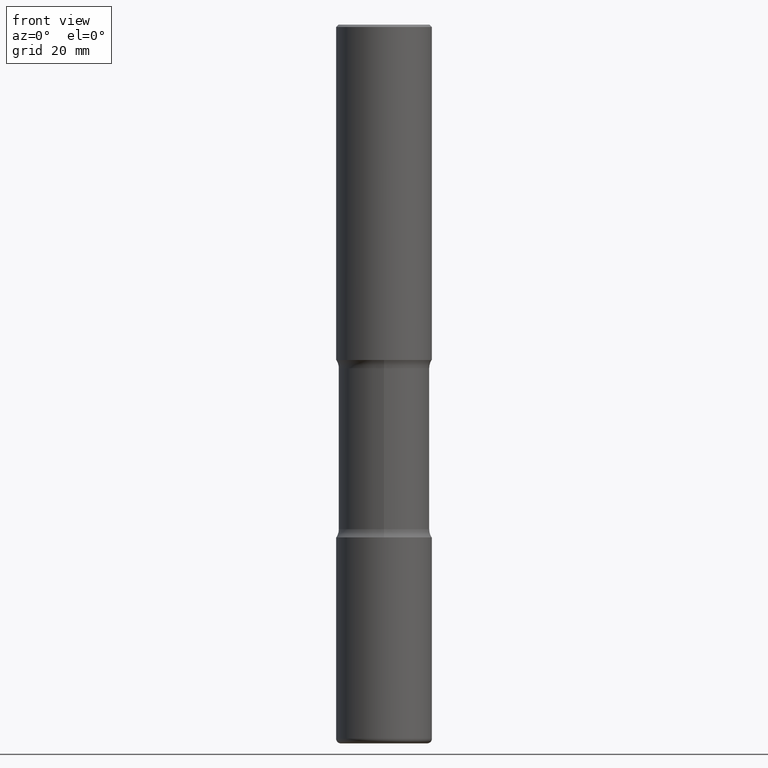
[diagram: clean part render]
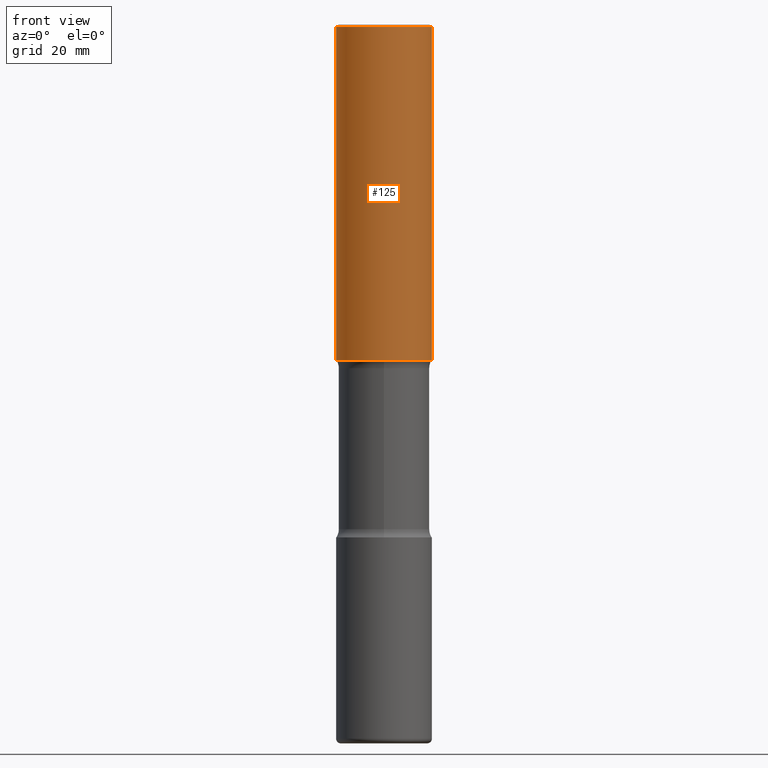
[diagram: same view with one face highlighted and labeled with its STEP entity id]
A machine part, front view. The second image highlights one B-rep face of the part: STEP entity #125.
In plain terms, the highlighted cylindrical surface (partial cylindrical patch) has radius 10 mm, axis along (-0, 0, 1).
Its self-contained STEP definition (entity closure, byte-faithful):
#19 = CARTESIAN_POINT ( 'NONE',  ( 4.890937612370298557E-31, -6.982962677686327354E-17, -0.02000000000000010103 ) ) ;
#23 = LINE ( 'NONE', #278, #466 ) ;
#75 = CARTESIAN_POINT ( 'NONE',  ( 0.3936999999999999389, -2.770807688499514945E-15, -0.02000000000000010103 ) ) ;
#100 = AXIS2_PLACEMENT_3D ( 'NONE', #108, #485, #102 ) ;
#102 = DIRECTION ( 'NONE',  ( 1.000000000000000000, -6.982962677686265133E-15, 0.000000000000000000 ) ) ;
#108 = CARTESIAN_POINT ( 'NONE',  ( 6.739467482965614869E-29, -9.622173421717819657E-15, -2.755899999999998240 ) ) ;
#123 = AXIS2_PLACEMENT_3D ( 'NONE', #19, #240, #530 ) ;
#125 = ADVANCED_FACE ( 'NONE', ( #217 ), #435, .T. ) ;
#126 = DIRECTION ( 'NONE',  ( 1.000000000000000000, -6.982962677686266711E-15, 4.876176775795935793E-29 ) ) ;
#154 = CARTESIAN_POINT ( 'NONE',  ( 0.3937000000000002164, -1.237136582792290287E-14, -2.755899999999998240 ) ) ;
#171 = DIRECTION ( 'NONE',  ( -2.445468806185136597E-29, 3.491481338843145583E-15, 1.000000000000000000 ) ) ;
#211 = EDGE_CURVE ( 'NONE', #360, #462, #429, .T. ) ;
#215 = CIRCLE ( 'NONE', #123, 0.3936999999999999389 ) ;
#217 = FACE_OUTER_BOUND ( 'NONE', #263, .T. ) ;
#240 = DIRECTION ( 'NONE',  ( -2.445468806185136597E-29, 3.491481338843145583E-15, 1.000000000000000000 ) ) ;
#243 = ORIENTED_EDGE ( 'NONE', *, *, #211, .T. ) ;
#253 = EDGE_CURVE ( 'NONE', #360, #395, #23, .T. ) ;
#262 = EDGE_CURVE ( 'NONE', #462, #373, #324, .T. ) ;
#263 = EDGE_LOOP ( 'NONE', ( #265, #243, #402, #319 ) ) ;
#265 = ORIENTED_EDGE ( 'NONE', *, *, #253, .F. ) ;
#268 = CARTESIAN_POINT ( 'NONE',  ( 0.000000000000000000, 0.000000000000000000, 0.000000000000000000 ) ) ;
#278 = CARTESIAN_POINT ( 'NONE',  ( -0.3937000000000001054, 2.797406750687515181E-15, -1.936584745033357016E-29 ) ) ;
#285 = EDGE_CURVE ( 'NONE', #395, #373, #215, .T. ) ;
#319 = ORIENTED_EDGE ( 'NONE', *, *, #285, .F. ) ;
#324 = LINE ( 'NONE', #494, #549 ) ;
#335 = CARTESIAN_POINT ( 'NONE',  ( -0.3936999999999999389, 2.679362779428219524E-15, -0.02000000000000010103 ) ) ;
#352 = AXIS2_PLACEMENT_3D ( 'NONE', #268, #171, #126 ) ;
#360 = VERTEX_POINT ( 'NONE', #430 ) ;
#373 = VERTEX_POINT ( 'NONE', #75 ) ;
#395 = VERTEX_POINT ( 'NONE', #335 ) ;
#402 = ORIENTED_EDGE ( 'NONE', *, *, #262, .T. ) ;
#411 = DIRECTION ( 'NONE',  ( -2.445468806185136877E-29, 3.491481338843145188E-15, 1.000000000000000000 ) ) ;
#429 = CIRCLE ( 'NONE', #100, 0.3937000000000002164 ) ;
#430 = CARTESIAN_POINT ( 'NONE',  ( -0.3937000000000002720, -2.048594773559823141E-15, -2.755899999999998240 ) ) ;
#435 = CYLINDRICAL_SURFACE ( 'NONE', #352, 0.3937000000000001054 ) ;
#459 = DIRECTION ( 'NONE',  ( -2.445468806185136877E-29, 3.491481338843145188E-15, 1.000000000000000000 ) ) ;
#462 = VERTEX_POINT ( 'NONE', #154 ) ;
#466 = VECTOR ( 'NONE', #411, 39.37007874015748143 ) ;
#485 = DIRECTION ( 'NONE',  ( -2.445468806185136597E-29, 3.491481338843145583E-15, 1.000000000000000000 ) ) ;
#494 = CARTESIAN_POINT ( 'NONE',  ( 0.3937000000000001054, -2.749192406205084005E-15, 1.919750796630860452E-29 ) ) ;
#530 = DIRECTION ( 'NONE',  ( 1.000000000000000000, -6.982962677686266711E-15, 0.000000000000000000 ) ) ;
#549 = VECTOR ( 'NONE', #459, 39.37007874015748143 ) ;